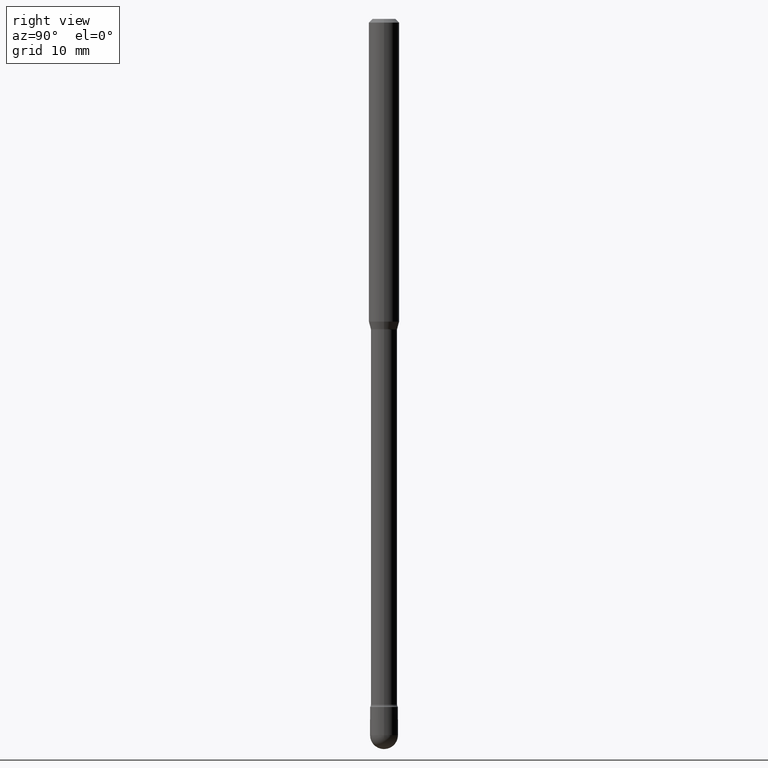
[diagram: clean part render]
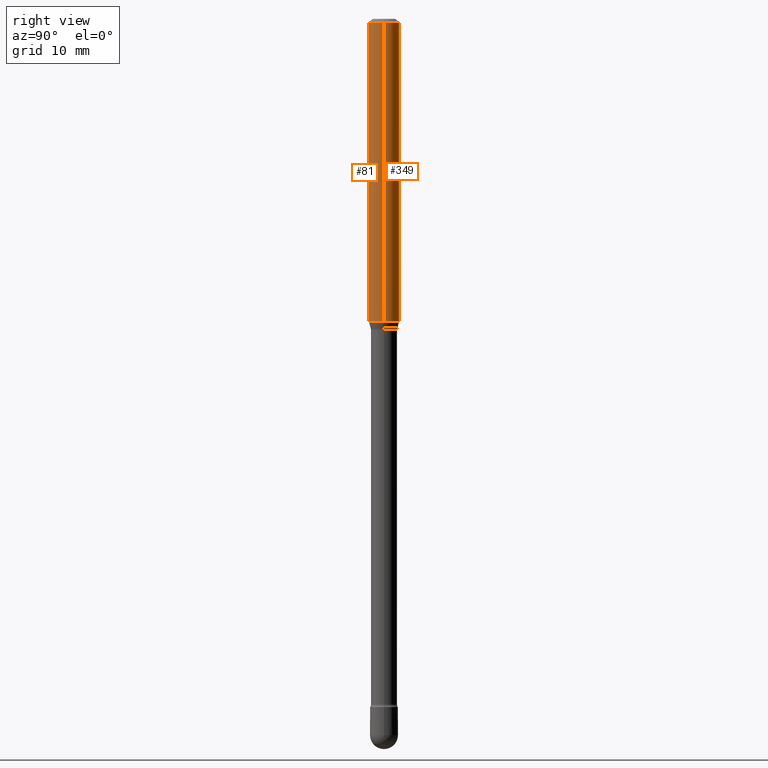
[diagram: same view with one multi-face feature highlighted, each face labeled with its STEP entity id]
A machine part, right view. The highlighted faces form ONE feature: a constant-radius fillet chain: 2 tangent blend faces with common blend radius 1.5875 mm. The faces share edges in the B-rep.
Their STEP definitions:
[1] entity #349 (Cylinder):
#55 = CARTESIAN_POINT ( 'NONE',  ( -0.06250000000000000000, 4.440892098500642925E-16, 4.780733988912429571E-16 ) ) ;
#72 = DIRECTION ( 'NONE',  ( 1.000000000000000000, -6.982962677686262766E-15, 0.000000000000000000 ) ) ;
#112 = EDGE_CURVE ( 'NONE', #424, #527, #353, .T. ) ;
#122 = EDGE_CURVE ( 'NONE', #466, #320, #437, .T. ) ;
#143 = DIRECTION ( 'NONE',  ( -2.445468806185136877E-29, 3.491481338843145188E-15, 1.000000000000000000 ) ) ;
#161 = CARTESIAN_POINT ( 'NONE',  ( -0.06250000000000000000, -3.897442737585411135E-15, -1.243464170676043423 ) ) ;
#244 = DIRECTION ( 'NONE',  ( -2.445468806185136597E-29, 3.491481338843145583E-15, 1.000000000000000000 ) ) ;
#247 = DIRECTION ( 'NONE',  ( 1.000000000000000000, -6.982962677686266711E-15, 4.852736867747366207E-29 ) ) ;
#276 = DIRECTION ( 'NONE',  ( -2.445468806185136877E-29, 3.491481338843145188E-15, 1.000000000000000000 ) ) ;
#290 = DIRECTION ( 'NONE',  ( -2.445468806185136597E-29, 3.491481338843145583E-15, 1.000000000000000000 ) ) ;
#299 = ORIENTED_EDGE ( 'NONE', *, *, #112, .F. ) ;
#301 = DIRECTION ( 'NONE',  ( -2.445468806185136597E-29, 3.491481338843145583E-15, 1.000000000000000000 ) ) ;
#302 = ORIENTED_EDGE ( 'NONE', *, *, #122, .T. ) ;
#320 = VERTEX_POINT ( 'NONE', #418 ) ;
#346 = EDGE_CURVE ( 'NONE', #424, #466, #483, .T. ) ;
#349 = ADVANCED_FACE ( 'NONE', ( #550 ), #385, .T. ) ;
#353 = LINE ( 'NONE', #537, #462 ) ;
#369 = CARTESIAN_POINT ( 'NONE',  ( 0.06250000000000000000, -4.777967114790866210E-15, -1.243464170676043423 ) ) ;
#377 = ORIENTED_EDGE ( 'NONE', *, *, #346, .T. ) ;
#381 = CARTESIAN_POINT ( 'NONE',  ( 3.040852840997134988E-29, -4.341531947435473751E-15, -1.243464170676043423 ) ) ;
#385 = CYLINDRICAL_SURFACE ( 'NONE', #388, 0.06250000000000000000 ) ;
#388 = AXIS2_PLACEMENT_3D ( 'NONE', #468, #244, #247 ) ;
#390 = CARTESIAN_POINT ( 'NONE',  ( 3.668203209277725232E-31, -5.237222008264747365E-17, -0.01500000000000008271 ) ) ;
#396 = VECTOR ( 'NONE', #276, 39.37007874015748143 ) ;
#418 = CARTESIAN_POINT ( 'NONE',  ( -0.06250000000000000000, -1.752862873908997996E-15, -0.01500000000000008271 ) ) ;
#424 = VERTEX_POINT ( 'NONE', #369 ) ;
#434 = AXIS2_PLACEMENT_3D ( 'NONE', #390, #301, #535 ) ;
#437 = LINE ( 'NONE', #55, #396 ) ;
#462 = VECTOR ( 'NONE', #143, 39.37007874015748143 ) ;
#466 = VERTEX_POINT ( 'NONE', #161 ) ;
#468 = CARTESIAN_POINT ( 'NONE',  ( -1.169113584055446105E-44, 1.669184350826100908E-30, 4.780733988912460139E-16 ) ) ;
#483 = CIRCLE ( 'NONE', #563, 0.06250000000000000000 ) ;
#487 = CARTESIAN_POINT ( 'NONE',  ( 0.06250000000000000000, -4.888073874380391431E-16, -0.01500000000000008271 ) ) ;
#509 = CIRCLE ( 'NONE', #434, 0.06250000000000000000 ) ;
#518 = ORIENTED_EDGE ( 'NONE', *, *, #533, .F. ) ;
#527 = VERTEX_POINT ( 'NONE', #487 ) ;
#533 = EDGE_CURVE ( 'NONE', #527, #320, #509, .T. ) ;
#535 = DIRECTION ( 'NONE',  ( 1.000000000000000000, -6.982962677686266711E-15, 0.000000000000000000 ) ) ;
#537 = CARTESIAN_POINT ( 'NONE',  ( 0.06250000000000000000, -4.364351673553899931E-16, 4.780733988912490708E-16 ) ) ;
#550 = FACE_OUTER_BOUND ( 'NONE', #560, .T. ) ;
#560 = EDGE_LOOP ( 'NONE', ( #377, #302, #518, #299 ) ) ;
#563 = AXIS2_PLACEMENT_3D ( 'NONE', #381, #290, #72 ) ;
[2] entity #81 (Cylinder):
#22 = AXIS2_PLACEMENT_3D ( 'NONE', #263, #43, #177 ) ;
#43 = DIRECTION ( 'NONE',  ( -2.445468806185136597E-29, 3.491481338843145583E-15, 1.000000000000000000 ) ) ;
#47 = ORIENTED_EDGE ( 'NONE', *, *, #403, .F. ) ;
#55 = CARTESIAN_POINT ( 'NONE',  ( -0.06250000000000000000, 4.440892098500642925E-16, 4.780733988912429571E-16 ) ) ;
#56 = ORIENTED_EDGE ( 'NONE', *, *, #122, .F. ) ;
#61 = DIRECTION ( 'NONE',  ( -2.445468806185136597E-29, 3.491481338843145583E-15, 1.000000000000000000 ) ) ;
#81 = ADVANCED_FACE ( 'NONE', ( #180 ), #439, .T. ) ;
#103 = CARTESIAN_POINT ( 'NONE',  ( 3.040852840997134988E-29, -4.341531947435473751E-15, -1.243464170676043423 ) ) ;
#112 = EDGE_CURVE ( 'NONE', #424, #527, #353, .T. ) ;
#115 = ORIENTED_EDGE ( 'NONE', *, *, #112, .T. ) ;
#122 = EDGE_CURVE ( 'NONE', #466, #320, #437, .T. ) ;
#143 = DIRECTION ( 'NONE',  ( -2.445468806185136877E-29, 3.491481338843145188E-15, 1.000000000000000000 ) ) ;
#144 = CIRCLE ( 'NONE', #262, 0.06250000000000000000 ) ;
#161 = CARTESIAN_POINT ( 'NONE',  ( -0.06250000000000000000, -3.897442737585411135E-15, -1.243464170676043423 ) ) ;
#177 = DIRECTION ( 'NONE',  ( 1.000000000000000000, -6.982962677686266711E-15, 4.852736867747366207E-29 ) ) ;
#180 = FACE_OUTER_BOUND ( 'NONE', #201, .T. ) ;
#201 = EDGE_LOOP ( 'NONE', ( #56, #246, #115, #47 ) ) ;
#232 = CIRCLE ( 'NONE', #305, 0.06250000000000000000 ) ;
#246 = ORIENTED_EDGE ( 'NONE', *, *, #300, .T. ) ;
#262 = AXIS2_PLACEMENT_3D ( 'NONE', #336, #427, #383 ) ;
#263 = CARTESIAN_POINT ( 'NONE',  ( -1.169113584055446105E-44, 1.669184350826100908E-30, 4.780733988912460139E-16 ) ) ;
#276 = DIRECTION ( 'NONE',  ( -2.445468806185136877E-29, 3.491481338843145188E-15, 1.000000000000000000 ) ) ;
#300 = EDGE_CURVE ( 'NONE', #466, #424, #232, .T. ) ;
#305 = AXIS2_PLACEMENT_3D ( 'NONE', #103, #61, #415 ) ;
#320 = VERTEX_POINT ( 'NONE', #418 ) ;
#336 = CARTESIAN_POINT ( 'NONE',  ( 3.668203209277725232E-31, -5.237222008264747365E-17, -0.01500000000000008271 ) ) ;
#353 = LINE ( 'NONE', #537, #462 ) ;
#369 = CARTESIAN_POINT ( 'NONE',  ( 0.06250000000000000000, -4.777967114790866210E-15, -1.243464170676043423 ) ) ;
#383 = DIRECTION ( 'NONE',  ( 1.000000000000000000, -6.982962677686266711E-15, 0.000000000000000000 ) ) ;
#396 = VECTOR ( 'NONE', #276, 39.37007874015748143 ) ;
#403 = EDGE_CURVE ( 'NONE', #320, #527, #144, .T. ) ;
#415 = DIRECTION ( 'NONE',  ( 1.000000000000000000, -6.982962677686262766E-15, 0.000000000000000000 ) ) ;
#418 = CARTESIAN_POINT ( 'NONE',  ( -0.06250000000000000000, -1.752862873908997996E-15, -0.01500000000000008271 ) ) ;
#424 = VERTEX_POINT ( 'NONE', #369 ) ;
#427 = DIRECTION ( 'NONE',  ( -2.445468806185136597E-29, 3.491481338843145583E-15, 1.000000000000000000 ) ) ;
#437 = LINE ( 'NONE', #55, #396 ) ;
#439 = CYLINDRICAL_SURFACE ( 'NONE', #22, 0.06250000000000000000 ) ;
#462 = VECTOR ( 'NONE', #143, 39.37007874015748143 ) ;
#466 = VERTEX_POINT ( 'NONE', #161 ) ;
#487 = CARTESIAN_POINT ( 'NONE',  ( 0.06250000000000000000, -4.888073874380391431E-16, -0.01500000000000008271 ) ) ;
#527 = VERTEX_POINT ( 'NONE', #487 ) ;
#537 = CARTESIAN_POINT ( 'NONE',  ( 0.06250000000000000000, -4.364351673553899931E-16, 4.780733988912490708E-16 ) ) ;